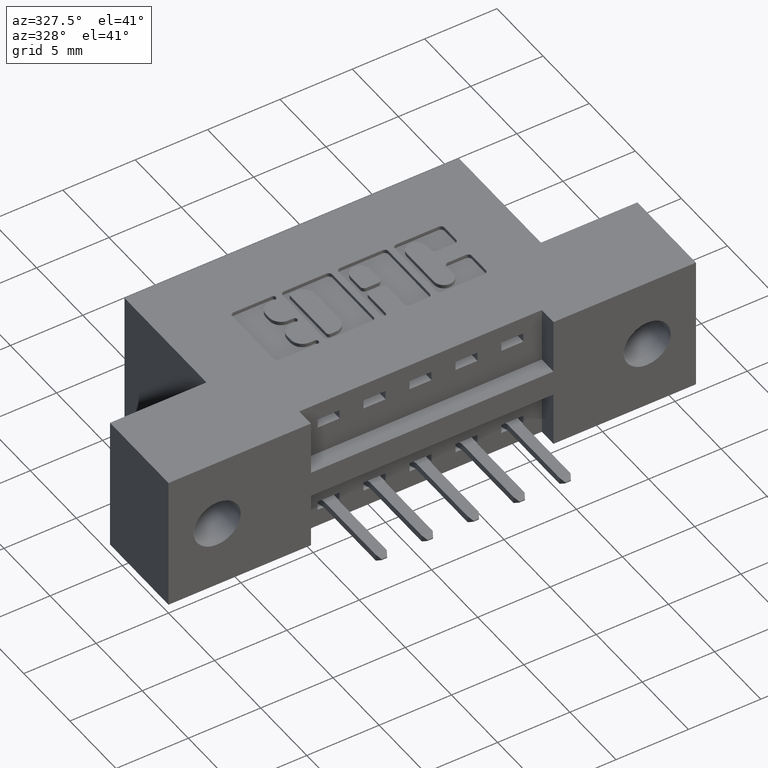
[diagram: clean part render]
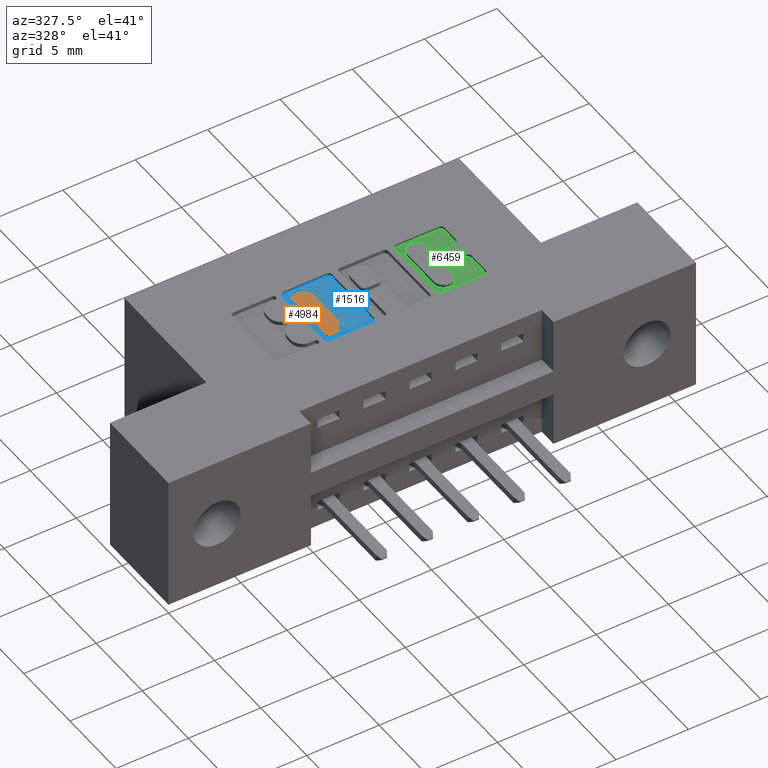
[diagram: same view with three faces highlighted in distinct colors, each labeled with its STEP entity id]
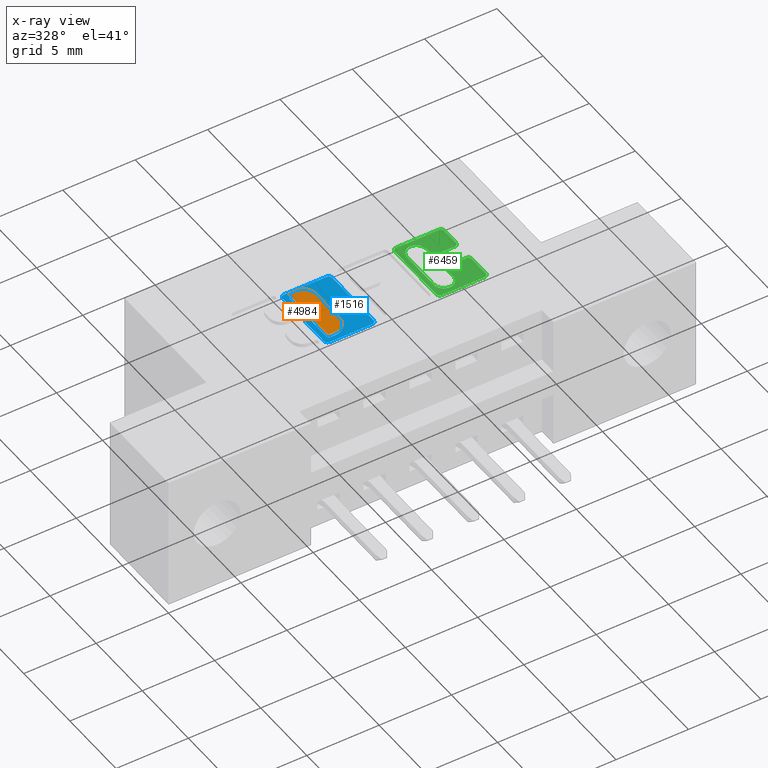
[diagram: x-ray of the same camera — body ghosted, the three highlighted faces saturated]
A machine part, auxiliary view with three faces highlighted in distinct colors.
The next image is the same camera in x-ray (body ghosted, the three faces saturated) — at least one of them is partly hidden behind the body in this view.
Their STEP definitions:

[orange] entity #4984 — the highlighted planar face has unit normal (0, 0, -1).
#148 = CARTESIAN_POINT ( 'NONE',  ( -0.0000000000000000000, 0.4094147637527238981, 0.0000000000000000000 ) ) ;
#159 = DIRECTION ( 'NONE',  ( -0.0000000000000000000, 0.0000000000000000000, 1.000000000000000000 ) ) ;
#198 = CARTESIAN_POINT ( 'NONE',  ( 0.5940679471871666006, 0.4094147637527238981, 0.0000000000000000000 ) ) ;
#213 = LINE ( 'NONE', #5865, #4966 ) ;
#244 = DIRECTION ( 'NONE',  ( 0.0000000000000000000, 0.0000000000000000000, -1.000000000000000000 ) ) ;
#364 = FACE_OUTER_BOUND ( 'NONE', #4982, .T. ) ;
#532 = VECTOR ( 'NONE', #5161, 39.37007874015748143 ) ;
#569 = CARTESIAN_POINT ( 'NONE',  ( 0.5940679471871666006, 0.4025437946100562381, 0.0000000000000000000 ) ) ;
#777 = DIRECTION ( 'NONE',  ( 0.0000000000000000000, 1.000000000000000000, -0.0000000000000000000 ) ) ;
#788 = CIRCLE ( 'NONE', #4519, 0.03141014465217187995 ) ;
#798 = DIRECTION ( 'NONE',  ( -1.000000000000000000, 0.0000000000000000000, 0.0000000000000000000 ) ) ;
#1354 = DIRECTION ( 'NONE',  ( 0.0000000000000000000, -1.000000000000000000, 0.0000000000000000000 ) ) ;
#1555 = ORIENTED_EDGE ( 'NONE', *, *, #6161, .T. ) ;
#1563 = VERTEX_POINT ( 'NONE', #8057 ) ;
#1577 = AXIS2_PLACEMENT_3D ( 'NONE', #569, #8029, #8096 ) ;
#1626 = ORIENTED_EDGE ( 'NONE', *, *, #6728, .F. ) ;
#1652 = DIRECTION ( 'NONE',  ( -0.0000000000000000000, 0.0000000000000000000, 1.000000000000000000 ) ) ;
#1787 = VERTEX_POINT ( 'NONE', #7262 ) ;
#1983 = CIRCLE ( 'NONE', #1577, 0.006870969142667761494 ) ;
#2033 = LINE ( 'NONE', #6505, #7414 ) ;
#2111 = DIRECTION ( 'NONE',  ( -0.0000000000000000000, 0.0000000000000000000, 1.000000000000000000 ) ) ;
#2135 = VECTOR ( 'NONE', #1354, 39.37007874015748143 ) ;
#2293 = DIRECTION ( 'NONE',  ( 1.000000000000000000, 0.0000000000000000000, 0.0000000000000000000 ) ) ;
#2348 = CARTESIAN_POINT ( 'NONE',  ( 0.5871969780444988851, 0.2474562053899769520, 0.0000000000000000000 ) ) ;
#2366 = CARTESIAN_POINT ( 'NONE',  ( 0.6397108136348437224, 0.3780046191005519973, 0.0000000000000000000 ) ) ;
#2372 = EDGE_CURVE ( 'NONE', #7899, #1563, #213, .T. ) ;
#2412 = CARTESIAN_POINT ( 'NONE',  ( 0.6083006689826718771, 0.3780046191005519973, 0.0000000000000000000 ) ) ;
#2942 = EDGE_CURVE ( 'NONE', #5444, #7232, #1983, .T. ) ;
#3691 = AXIS2_PLACEMENT_3D ( 'NONE', #7153, #159, #3885 ) ;
#3784 = ORIENTED_EDGE ( 'NONE', *, *, #2942, .T. ) ;
#3857 = ORIENTED_EDGE ( 'NONE', *, *, #6763, .F. ) ;
#3885 = DIRECTION ( 'NONE',  ( 1.000000000000000000, 0.0000000000000000000, 0.0000000000000000000 ) ) ;
#3957 = CARTESIAN_POINT ( 'NONE',  ( 0.6083006689826735425, 0.2405852362473137329, 0.0000000000000000000 ) ) ;
#4244 = CIRCLE ( 'NONE', #6515, 0.006870969142663253815 ) ;
#4343 = CARTESIAN_POINT ( 'NONE',  ( 0.6397108136348437224, 0.2719953808994839961, 0.0000000000000000000 ) ) ;
#4519 = AXIS2_PLACEMENT_3D ( 'NONE', #2412, #1652, #2293 ) ;
#4602 = ORIENTED_EDGE ( 'NONE', *, *, #5200, .T. ) ;
#4614 = CARTESIAN_POINT ( 'NONE',  ( 0.6397108136348437224, 0.0000000000000000000, 0.0000000000000000000 ) ) ;
#4677 = DIRECTION ( 'NONE',  ( -1.000000000000000000, 0.0000000000000000000, -0.0000000000000000000 ) ) ;
#4761 = CIRCLE ( 'NONE', #3691, 0.03141014465217017299 ) ;
#4966 = VECTOR ( 'NONE', #798, 39.37007874015748143 ) ;
#4982 = EDGE_LOOP ( 'NONE', ( #3784, #8163, #1555, #6654, #4602, #1626, #8194, #3857 ) ) ;
#4984 = ADVANCED_FACE ( 'NONE', ( #364 ), #7909, .F. ) ;
#5161 = DIRECTION ( 'NONE',  ( 1.000000000000000000, 0.0000000000000000000, 0.0000000000000000000 ) ) ;
#5200 = EDGE_CURVE ( 'NONE', #7899, #7379, #4761, .T. ) ;
#5273 = EDGE_CURVE ( 'NONE', #6844, #7232, #2033, .T. ) ;
#5441 = AXIS2_PLACEMENT_3D ( 'NONE', #7872, #244, #4677 ) ;
#5444 = VERTEX_POINT ( 'NONE', #198 ) ;
#5788 = VERTEX_POINT ( 'NONE', #2366 ) ;
#5865 = CARTESIAN_POINT ( 'NONE',  ( 0.0000000000000000000, 0.2405852362473137329, 0.0000000000000000000 ) ) ;
#5870 = EDGE_CURVE ( 'NONE', #5788, #1787, #788, .T. ) ;
#6161 = EDGE_CURVE ( 'NONE', #6844, #1563, #4244, .T. ) ;
#6505 = CARTESIAN_POINT ( 'NONE',  ( 0.5871969780444988851, 0.0000000000000000000, 0.0000000000000000000 ) ) ;
#6515 = AXIS2_PLACEMENT_3D ( 'NONE', #7860, #2111, #7901 ) ;
#6654 = ORIENTED_EDGE ( 'NONE', *, *, #2372, .F. ) ;
#6725 = CARTESIAN_POINT ( 'NONE',  ( 0.5871969780444988851, 0.4025437946100562381, 0.0000000000000000000 ) ) ;
#6728 = EDGE_CURVE ( 'NONE', #5788, #7379, #7845, .T. ) ;
#6763 = EDGE_CURVE ( 'NONE', #5444, #1787, #7178, .T. ) ;
#6844 = VERTEX_POINT ( 'NONE', #2348 ) ;
#7153 = CARTESIAN_POINT ( 'NONE',  ( 0.6083006689826735425, 0.2719953808994839961, 0.0000000000000000000 ) ) ;
#7178 = LINE ( 'NONE', #148, #532 ) ;
#7232 = VERTEX_POINT ( 'NONE', #6725 ) ;
#7262 = CARTESIAN_POINT ( 'NONE',  ( 0.6083006689826780944, 0.4094147637527238981, 0.0000000000000000000 ) ) ;
#7379 = VERTEX_POINT ( 'NONE', #4343 ) ;
#7414 = VECTOR ( 'NONE', #777, 39.37007874015748143 ) ;
#7845 = LINE ( 'NONE', #4614, #2135 ) ;
#7860 = CARTESIAN_POINT ( 'NONE',  ( 0.5940679471871621598, 0.2474562053899769520, 0.0000000000000000000 ) ) ;
#7872 = CARTESIAN_POINT ( 'NONE',  ( 0.0000000000000000000, 0.5999999999999999778, 0.0000000000000000000 ) ) ;
#7899 = VERTEX_POINT ( 'NONE', #3957 ) ;
#7901 = DIRECTION ( 'NONE',  ( 1.000000000000000000, 0.0000000000000000000, 0.0000000000000000000 ) ) ;
#7909 = PLANE ( 'NONE',  #5441 ) ;
#8029 = DIRECTION ( 'NONE',  ( -0.0000000000000000000, 0.0000000000000000000, 1.000000000000000000 ) ) ;
#8057 = CARTESIAN_POINT ( 'NONE',  ( 0.5940679471871621598, 0.2405852362473137329, 0.0000000000000000000 ) ) ;
#8096 = DIRECTION ( 'NONE',  ( 1.000000000000000000, 0.0000000000000000000, 0.0000000000000000000 ) ) ;
#8163 = ORIENTED_EDGE ( 'NONE', *, *, #5273, .F. ) ;
#8194 = ORIENTED_EDGE ( 'NONE', *, *, #5870, .T. ) ;

[blue] entity #1516 — the highlighted planar face has unit normal (0, 0, 1).
#18 = CARTESIAN_POINT ( 'NONE',  ( 0.5832707099630102254, 0.4133410318342096157, -0.01000000000000000021 ) ) ;
#100 = ORIENTED_EDGE ( 'NONE', *, *, #3352, .T. ) ;
#226 = CARTESIAN_POINT ( 'NONE',  ( 0.0000000000000000000, 0.0000000000000000000, -0.01000000000000000021 ) ) ;
#293 = EDGE_CURVE ( 'NONE', #3027, #2261, #7448, .T. ) ;
#367 = VERTEX_POINT ( 'NONE', #2102 ) ;
#445 = DIRECTION ( 'NONE',  ( 1.000000000000000000, 0.0000000000000000000, 0.0000000000000000000 ) ) ;
#482 = EDGE_CURVE ( 'NONE', #2793, #7440, #2279, .T. ) ;
#581 = CIRCLE ( 'NONE', #6056, 0.009815670203806754757 ) ;
#585 = CARTESIAN_POINT ( 'NONE',  ( 0.5734550397591693383, 0.4133410318342096157, -0.01000000000000000021 ) ) ;
#667 = CARTESIAN_POINT ( 'NONE',  ( 0.5832707099629761416, 0.2366589681657894073, -0.01000000000000000021 ) ) ;
#677 = EDGE_CURVE ( 'NONE', #861, #5348, #1604, .T. ) ;
#695 = VERTEX_POINT ( 'NONE', #2988 ) ;
#708 = VERTEX_POINT ( 'NONE', #6086 ) ;
#861 = VERTEX_POINT ( 'NONE', #7925 ) ;
#1029 = DIRECTION ( 'NONE',  ( 0.0000000000000000000, -1.000000000000000000, 0.0000000000000000000 ) ) ;
#1037 = DIRECTION ( 'NONE',  ( -1.000000000000000000, 0.0000000000000000000, 0.0000000000000000000 ) ) ;
#1072 = CARTESIAN_POINT ( 'NONE',  ( 0.6083006689826718771, 0.3780046191005519973, -0.01000000000000000021 ) ) ;
#1109 = ORIENTED_EDGE ( 'NONE', *, *, #7762, .F. ) ;
#1143 = EDGE_CURVE ( 'NONE', #367, #695, #5142, .T. ) ;
#1148 = ORIENTED_EDGE ( 'NONE', *, *, #1143, .T. ) ;
#1307 = DIRECTION ( 'NONE',  ( 0.0000000000000000000, -1.000000000000000000, 0.0000000000000000000 ) ) ;
#1357 = CARTESIAN_POINT ( 'NONE',  ( 0.6083006689826735425, 0.2719953808994839961, -0.01000000000000000021 ) ) ;
#1386 = CARTESIAN_POINT ( 'NONE',  ( 0.7089112885716690737, 0.0000000000000000000, -0.01000000000000000021 ) ) ;
#1506 = VERTEX_POINT ( 'NONE', #6374 ) ;
#1516 = ADVANCED_FACE ( 'NONE', ( #6044, #3411 ), #4118, .T. ) ;
#1570 = CARTESIAN_POINT ( 'NONE',  ( 0.5871969780444988851, 0.2474562053899769520, -0.01000000000000000021 ) ) ;
#1571 = VECTOR ( 'NONE', #1029, 39.37007874015748143 ) ;
#1604 = CIRCLE ( 'NONE', #4025, 0.009815670203806891800 ) ;
#1733 = ORIENTED_EDGE ( 'NONE', *, *, #4928, .T. ) ;
#2011 = AXIS2_PLACEMENT_3D ( 'NONE', #226, #5333, #5458 ) ;
#2036 = DIRECTION ( 'NONE',  ( 1.000000000000000000, 0.0000000000000000000, 0.0000000000000000000 ) ) ;
#2055 = LINE ( 'NONE', #1386, #6698 ) ;
#2077 = CARTESIAN_POINT ( 'NONE',  ( 0.6990956183678621594, 0.2366589681657894073, -0.01000000000000000021 ) ) ;
#2080 = CARTESIAN_POINT ( 'NONE',  ( 0.7089112885716690737, 0.4133410318342096157, -0.01000000000000000021 ) ) ;
#2093 = CARTESIAN_POINT ( 'NONE',  ( 0.5940679471871621598, 0.2474562053899769520, -0.01000000000000000021 ) ) ;
#2102 = CARTESIAN_POINT ( 'NONE',  ( 0.6083006689826735425, 0.2405852362473137329, -0.01000000000000000021 ) ) ;
#2146 = AXIS2_PLACEMENT_3D ( 'NONE', #1357, #7017, #5164 ) ;
#2261 = VERTEX_POINT ( 'NONE', #7966 ) ;
#2279 = CIRCLE ( 'NONE', #6921, 0.009815670203840902788 ) ;
#2401 = AXIS2_PLACEMENT_3D ( 'NONE', #7102, #5162, #4580 ) ;
#2597 = DIRECTION ( 'NONE',  ( 1.000000000000000000, 0.0000000000000000000, 0.0000000000000000000 ) ) ;
#2598 = ORIENTED_EDGE ( 'NONE', *, *, #3412, .F. ) ;
#2740 = CARTESIAN_POINT ( 'NONE',  ( 0.5940679471871666006, 0.4094147637527238981, -0.01000000000000000021 ) ) ;
#2793 = VERTEX_POINT ( 'NONE', #4661 ) ;
#2795 = VERTEX_POINT ( 'NONE', #6000 ) ;
#2843 = LINE ( 'NONE', #4801, #3569 ) ;
#2880 = DIRECTION ( 'NONE',  ( -0.0000000000000000000, 0.0000000000000000000, 1.000000000000000000 ) ) ;
#2965 = CIRCLE ( 'NONE', #4707, 0.006870969142663253815 ) ;
#2988 = CARTESIAN_POINT ( 'NONE',  ( 0.5940679471871621598, 0.2405852362473137329, -0.01000000000000000021 ) ) ;
#3027 = VERTEX_POINT ( 'NONE', #2080 ) ;
#3061 = CARTESIAN_POINT ( 'NONE',  ( 0.5871969780444988851, 0.0000000000000000000, -0.01000000000000000021 ) ) ;
#3071 = CIRCLE ( 'NONE', #5894, 0.006870969142667761494 ) ;
#3136 = VERTEX_POINT ( 'NONE', #3336 ) ;
#3146 = EDGE_LOOP ( 'NONE', ( #100, #3692, #7582, #6866, #7864, #7473, #6596, #5223 ) ) ;
#3158 = VERTEX_POINT ( 'NONE', #5936 ) ;
#3227 = DIRECTION ( 'NONE',  ( -0.0000000000000000000, 0.0000000000000000000, 1.000000000000000000 ) ) ;
#3336 = CARTESIAN_POINT ( 'NONE',  ( 0.5734550397591693383, 0.2366589681657894073, -0.01000000000000000021 ) ) ;
#3352 = EDGE_CURVE ( 'NONE', #5348, #3027, #2055, .T. ) ;
#3411 = FACE_OUTER_BOUND ( 'NONE', #3146, .T. ) ;
#3412 = EDGE_CURVE ( 'NONE', #7645, #695, #2965, .T. ) ;
#3515 = EDGE_CURVE ( 'NONE', #2261, #2793, #6101, .T. ) ;
#3569 = VECTOR ( 'NONE', #4184, 39.37007874015748143 ) ;
#3596 = DIRECTION ( 'NONE',  ( -0.0000000000000000000, 0.0000000000000000000, 1.000000000000000000 ) ) ;
#3692 = ORIENTED_EDGE ( 'NONE', *, *, #293, .T. ) ;
#3790 = CARTESIAN_POINT ( 'NONE',  ( 0.5832707099629761416, 0.2268432979619826595, -0.01000000000000000021 ) ) ;
#3815 = EDGE_CURVE ( 'NONE', #3136, #6488, #581, .T. ) ;
#3985 = DIRECTION ( 'NONE',  ( 0.0000000000000000000, 1.000000000000000000, -0.0000000000000000000 ) ) ;
#4025 = AXIS2_PLACEMENT_3D ( 'NONE', #2077, #5218, #2036 ) ;
#4118 = PLANE ( 'NONE',  #2011 ) ;
#4138 = EDGE_LOOP ( 'NONE', ( #6879, #1733, #4181, #7033, #1109, #1148, #2598, #7710 ) ) ;
#4181 = ORIENTED_EDGE ( 'NONE', *, *, #6015, .F. ) ;
#4184 = DIRECTION ( 'NONE',  ( 1.000000000000000000, 0.0000000000000000000, 0.0000000000000000000 ) ) ;
#4288 = EDGE_CURVE ( 'NONE', #7645, #3158, #6737, .T. ) ;
#4399 = DIRECTION ( 'NONE',  ( 1.000000000000000000, 0.0000000000000000000, 0.0000000000000000000 ) ) ;
#4415 = EDGE_CURVE ( 'NONE', #6488, #861, #6364, .T. ) ;
#4447 = CARTESIAN_POINT ( 'NONE',  ( 0.0000000000000000000, 0.2268432979619826595, -0.01000000000000000021 ) ) ;
#4522 = VECTOR ( 'NONE', #4399, 39.37007874015748143 ) ;
#4580 = DIRECTION ( 'NONE',  ( 1.000000000000000000, 0.0000000000000000000, 0.0000000000000000000 ) ) ;
#4604 = DIRECTION ( 'NONE',  ( 1.000000000000000000, 0.0000000000000000000, 0.0000000000000000000 ) ) ;
#4643 = CARTESIAN_POINT ( 'NONE',  ( 0.0000000000000000000, 0.2405852362473137329, -0.01000000000000000021 ) ) ;
#4648 = DIRECTION ( 'NONE',  ( 1.000000000000000000, 0.0000000000000000000, 0.0000000000000000000 ) ) ;
#4661 = CARTESIAN_POINT ( 'NONE',  ( 0.5832707099630102254, 0.4231567020380505029, -0.01000000000000000021 ) ) ;
#4707 = AXIS2_PLACEMENT_3D ( 'NONE', #2093, #7132, #4648 ) ;
#4801 = CARTESIAN_POINT ( 'NONE',  ( 0.0000000000000000000, 0.4094147637527238981, -0.01000000000000000021 ) ) ;
#4802 = CARTESIAN_POINT ( 'NONE',  ( 0.6397108136348437224, 0.0000000000000000000, -0.01000000000000000021 ) ) ;
#4828 = CARTESIAN_POINT ( 'NONE',  ( 0.7089112885716690737, 0.2366589681657894073, -0.01000000000000000021 ) ) ;
#4928 = EDGE_CURVE ( 'NONE', #6620, #708, #2843, .T. ) ;
#5142 = LINE ( 'NONE', #4643, #7061 ) ;
#5162 = DIRECTION ( 'NONE',  ( -0.0000000000000000000, 0.0000000000000000000, 1.000000000000000000 ) ) ;
#5164 = DIRECTION ( 'NONE',  ( 1.000000000000000000, 0.0000000000000000000, 0.0000000000000000000 ) ) ;
#5218 = DIRECTION ( 'NONE',  ( -0.0000000000000000000, 0.0000000000000000000, 1.000000000000000000 ) ) ;
#5223 = ORIENTED_EDGE ( 'NONE', *, *, #677, .T. ) ;
#5333 = DIRECTION ( 'NONE',  ( -0.0000000000000000000, 0.0000000000000000000, 1.000000000000000000 ) ) ;
#5348 = VERTEX_POINT ( 'NONE', #4828 ) ;
#5368 = DIRECTION ( 'NONE',  ( 1.000000000000000000, 0.0000000000000000000, 0.0000000000000000000 ) ) ;
#5458 = DIRECTION ( 'NONE',  ( 1.000000000000000000, 0.0000000000000000000, 0.0000000000000000000 ) ) ;
#5631 = DIRECTION ( 'NONE',  ( 0.0000000000000000000, 1.000000000000000000, -0.0000000000000000000 ) ) ;
#5666 = EDGE_CURVE ( 'NONE', #7440, #3136, #7720, .T. ) ;
#5763 = CIRCLE ( 'NONE', #2146, 0.03141014465217017299 ) ;
#5894 = AXIS2_PLACEMENT_3D ( 'NONE', #6100, #3596, #5368 ) ;
#5910 = VECTOR ( 'NONE', #1037, 39.37007874015748143 ) ;
#5911 = DIRECTION ( 'NONE',  ( -0.0000000000000000000, 0.0000000000000000000, 1.000000000000000000 ) ) ;
#5936 = CARTESIAN_POINT ( 'NONE',  ( 0.5871969780444988851, 0.4025437946100562381, -0.01000000000000000021 ) ) ;
#5974 = EDGE_CURVE ( 'NONE', #1506, #2795, #6868, .T. ) ;
#5997 = AXIS2_PLACEMENT_3D ( 'NONE', #1072, #2880, #445 ) ;
#6000 = CARTESIAN_POINT ( 'NONE',  ( 0.6397108136348437224, 0.2719953808994839961, -0.01000000000000000021 ) ) ;
#6015 = EDGE_CURVE ( 'NONE', #1506, #708, #6251, .T. ) ;
#6044 = FACE_BOUND ( 'NONE', #4138, .T. ) ;
#6056 = AXIS2_PLACEMENT_3D ( 'NONE', #667, #3227, #2597 ) ;
#6086 = CARTESIAN_POINT ( 'NONE',  ( 0.6083006689826780944, 0.4094147637527238981, -0.01000000000000000021 ) ) ;
#6100 = CARTESIAN_POINT ( 'NONE',  ( 0.5940679471871666006, 0.4025437946100562381, -0.01000000000000000021 ) ) ;
#6101 = LINE ( 'NONE', #8042, #5910 ) ;
#6251 = CIRCLE ( 'NONE', #5997, 0.03141014465217187995 ) ;
#6364 = LINE ( 'NONE', #4447, #4522 ) ;
#6374 = CARTESIAN_POINT ( 'NONE',  ( 0.6397108136348437224, 0.3780046191005519973, -0.01000000000000000021 ) ) ;
#6488 = VERTEX_POINT ( 'NONE', #3790 ) ;
#6596 = ORIENTED_EDGE ( 'NONE', *, *, #4415, .T. ) ;
#6620 = VERTEX_POINT ( 'NONE', #2740 ) ;
#6698 = VECTOR ( 'NONE', #3985, 39.37007874015748143 ) ;
#6737 = LINE ( 'NONE', #3061, #7594 ) ;
#6866 = ORIENTED_EDGE ( 'NONE', *, *, #482, .T. ) ;
#6868 = LINE ( 'NONE', #4802, #1571 ) ;
#6879 = ORIENTED_EDGE ( 'NONE', *, *, #7307, .F. ) ;
#6921 = AXIS2_PLACEMENT_3D ( 'NONE', #18, #5911, #4604 ) ;
#6975 = CARTESIAN_POINT ( 'NONE',  ( 0.5734550397591693383, 0.0000000000000000000, -0.01000000000000000021 ) ) ;
#7017 = DIRECTION ( 'NONE',  ( -0.0000000000000000000, 0.0000000000000000000, 1.000000000000000000 ) ) ;
#7033 = ORIENTED_EDGE ( 'NONE', *, *, #5974, .T. ) ;
#7061 = VECTOR ( 'NONE', #7169, 39.37007874015748143 ) ;
#7102 = CARTESIAN_POINT ( 'NONE',  ( 0.6990956183678280755, 0.4133410318342094492, -0.01000000000000000021 ) ) ;
#7132 = DIRECTION ( 'NONE',  ( -0.0000000000000000000, 0.0000000000000000000, 1.000000000000000000 ) ) ;
#7169 = DIRECTION ( 'NONE',  ( -1.000000000000000000, 0.0000000000000000000, 0.0000000000000000000 ) ) ;
#7307 = EDGE_CURVE ( 'NONE', #6620, #3158, #3071, .T. ) ;
#7440 = VERTEX_POINT ( 'NONE', #585 ) ;
#7448 = CIRCLE ( 'NONE', #2401, 0.009815670203841039831 ) ;
#7473 = ORIENTED_EDGE ( 'NONE', *, *, #3815, .T. ) ;
#7582 = ORIENTED_EDGE ( 'NONE', *, *, #3515, .T. ) ;
#7594 = VECTOR ( 'NONE', #5631, 39.37007874015748143 ) ;
#7645 = VERTEX_POINT ( 'NONE', #1570 ) ;
#7685 = VECTOR ( 'NONE', #1307, 39.37007874015748143 ) ;
#7710 = ORIENTED_EDGE ( 'NONE', *, *, #4288, .T. ) ;
#7720 = LINE ( 'NONE', #6975, #7685 ) ;
#7762 = EDGE_CURVE ( 'NONE', #367, #2795, #5763, .T. ) ;
#7864 = ORIENTED_EDGE ( 'NONE', *, *, #5666, .T. ) ;
#7925 = CARTESIAN_POINT ( 'NONE',  ( 0.6990956183678621594, 0.2268432979619826595, -0.01000000000000000021 ) ) ;
#7966 = CARTESIAN_POINT ( 'NONE',  ( 0.6990956183678962432, 0.4231567020380505029, -0.01000000000000000021 ) ) ;
#8042 = CARTESIAN_POINT ( 'NONE',  ( 0.0000000000000000000, 0.4231567020380505029, -0.01000000000000000021 ) ) ;

[green] entity #6459 — the highlighted planar face has unit normal (0, 0, 1).
#33 = DIRECTION ( 'NONE',  ( 1.000000000000000000, 0.0000000000000000000, 0.0000000000000000000 ) ) ;
#84 = CARTESIAN_POINT ( 'NONE',  ( 0.8924643213828185040, 0.2668421540424524840, -0.01000000000000000021 ) ) ;
#203 = EDGE_CURVE ( 'NONE', #1086, #3684, #4491, .T. ) ;
#279 = VERTEX_POINT ( 'NONE', #6857 ) ;
#289 = EDGE_CURVE ( 'NONE', #836, #1086, #4539, .T. ) ;
#373 = VECTOR ( 'NONE', #6506, 39.37007874015748143 ) ;
#375 = CARTESIAN_POINT ( 'NONE',  ( 1.004362961706134483, 0.2366589681657894073, -0.01000000000000000021 ) ) ;
#436 = EDGE_CURVE ( 'NONE', #6325, #4104, #3816, .T. ) ;
#471 = PLANE ( 'NONE',  #5052 ) ;
#561 = ORIENTED_EDGE ( 'NONE', *, *, #203, .T. ) ;
#752 = CARTESIAN_POINT ( 'NONE',  ( 0.9187212391779988607, 0.2668421540424524840, -0.01000000000000000021 ) ) ;
#835 = EDGE_LOOP ( 'NONE', ( #7952, #7323, #8132, #4872, #4901, #6619, #5752, #4508, #561, #5704, #8098, #6973, #2644, #3884, #1799, #3279, #5048, #1596, #1210, #7045 ) ) ;
#836 = VERTEX_POINT ( 'NONE', #6651 ) ;
#942 = DIRECTION ( 'NONE',  ( 1.000000000000000000, 0.0000000000000000000, 0.0000000000000000000 ) ) ;
#976 = CARTESIAN_POINT ( 'NONE',  ( 0.9449781569731660058, 0.3637718973050446669, -0.01000000000000000021 ) ) ;
#1004 = EDGE_CURVE ( 'NONE', #3684, #279, #1870, .T. ) ;
#1018 = CARTESIAN_POINT ( 'NONE',  ( 1.014178631909972150, 0.3637718973050381166, -0.01000000000000000021 ) ) ;
#1021 = CARTESIAN_POINT ( 'NONE',  ( 0.9547938271769671470, 0.3063502266127570151, -0.01000000000000000021 ) ) ;
#1024 = VERTEX_POINT ( 'NONE', #5489 ) ;
#1086 = VERTEX_POINT ( 'NONE', #6182 ) ;
#1091 = CARTESIAN_POINT ( 'NONE',  ( 0.9547938271769774721, 0.3637718973050446669, -0.01000000000000000021 ) ) ;
#1102 = DIRECTION ( 'NONE',  ( 0.0000000000000000000, 1.000000000000000000, -0.0000000000000000000 ) ) ;
#1123 = VERTEX_POINT ( 'NONE', #7794 ) ;
#1200 = EDGE_CURVE ( 'NONE', #1301, #4121, #2287, .T. ) ;
#1207 = CIRCLE ( 'NONE', #2814, 0.009815670203840083999 ) ;
#1210 = ORIENTED_EDGE ( 'NONE', *, *, #4732, .T. ) ;
#1223 = DIRECTION ( 'NONE',  ( 1.000000000000000000, 0.0000000000000000000, 0.0000000000000000000 ) ) ;
#1240 = AXIS2_PLACEMENT_3D ( 'NONE', #2493, #1944, #1273 ) ;
#1269 = CARTESIAN_POINT ( 'NONE',  ( 0.8787223830974586480, 0.0000000000000000000, -0.01000000000000000021 ) ) ;
#1273 = DIRECTION ( 'NONE',  ( 1.000000000000000000, 0.0000000000000000000, 0.0000000000000000000 ) ) ;
#1301 = VERTEX_POINT ( 'NONE', #84 ) ;
#1502 = EDGE_CURVE ( 'NONE', #5624, #836, #6979, .T. ) ;
#1507 = VECTOR ( 'NONE', #3290, 39.37007874015748143 ) ;
#1596 = ORIENTED_EDGE ( 'NONE', *, *, #3982, .F. ) ;
#1601 = CARTESIAN_POINT ( 'NONE',  ( 0.0000000000000000000, 0.0000000000000000000, -0.01000000000000000021 ) ) ;
#1651 = VERTEX_POINT ( 'NONE', #1021 ) ;
#1673 = CARTESIAN_POINT ( 'NONE',  ( 1.004362961706168456, 0.4231567020380505029, -0.01000000000000000021 ) ) ;
#1767 = EDGE_CURVE ( 'NONE', #1301, #6314, #5995, .T. ) ;
#1799 = ORIENTED_EDGE ( 'NONE', *, *, #7399, .T. ) ;
#1870 = CIRCLE ( 'NONE', #8117, 0.009815670203806345362 ) ;
#1873 = EDGE_CURVE ( 'NONE', #3077, #7894, #3505, .T. ) ;
#1944 = DIRECTION ( 'NONE',  ( -0.0000000000000000000, 0.0000000000000000000, 1.000000000000000000 ) ) ;
#2020 = CARTESIAN_POINT ( 'NONE',  ( 1.004362961706156687, 0.3063502266127570151, -0.01000000000000000021 ) ) ;
#2053 = DIRECTION ( 'NONE',  ( 0.0000000000000000000, 1.000000000000000000, -0.0000000000000000000 ) ) ;
#2054 = CARTESIAN_POINT ( 'NONE',  ( 1.004362961706132040, 0.4133410318342103928, -0.01000000000000000021 ) ) ;
#2107 = VERTEX_POINT ( 'NONE', #3551 ) ;
#2122 = EDGE_CURVE ( 'NONE', #1651, #1123, #4044, .T. ) ;
#2161 = LINE ( 'NONE', #5217, #373 ) ;
#2188 = EDGE_CURVE ( 'NONE', #7894, #1651, #5581, .T. ) ;
#2257 = DIRECTION ( 'NONE',  ( -0.0000000000000000000, 0.0000000000000000000, 1.000000000000000000 ) ) ;
#2284 = CARTESIAN_POINT ( 'NONE',  ( 1.014178631909940176, 0.0000000000000000000, -0.01000000000000000021 ) ) ;
#2287 = CIRCLE ( 'NONE', #4561, 0.02625691779518022489 ) ;
#2323 = LINE ( 'NONE', #2284, #5575 ) ;
#2326 = CARTESIAN_POINT ( 'NONE',  ( 0.9547938271769671470, 0.2965345564089690300, -0.01000000000000000021 ) ) ;
#2420 = VECTOR ( 'NONE', #3832, 39.37007874015748143 ) ;
#2493 = CARTESIAN_POINT ( 'NONE',  ( 0.8885380533012994242, 0.4133410318342096157, -0.01000000000000000021 ) ) ;
#2644 = ORIENTED_EDGE ( 'NONE', *, *, #2188, .T. ) ;
#2663 = VERTEX_POINT ( 'NONE', #3286 ) ;
#2685 = DIRECTION ( 'NONE',  ( -0.0000000000000000000, 0.0000000000000000000, 1.000000000000000000 ) ) ;
#2814 = AXIS2_PLACEMENT_3D ( 'NONE', #2054, #7707, #3354 ) ;
#2926 = AXIS2_PLACEMENT_3D ( 'NONE', #4615, #4041, #7846 ) ;
#2981 = DIRECTION ( 'NONE',  ( -0.0000000000000000000, 0.0000000000000000000, 1.000000000000000000 ) ) ;
#3008 = LINE ( 'NONE', #5577, #6219 ) ;
#3077 = VERTEX_POINT ( 'NONE', #7693 ) ;
#3130 = DIRECTION ( 'NONE',  ( 0.0000000000000000000, -1.000000000000000000, 0.0000000000000000000 ) ) ;
#3199 = DIRECTION ( 'NONE',  ( -0.0000000000000000000, 0.0000000000000000000, 1.000000000000000000 ) ) ;
#3279 = ORIENTED_EDGE ( 'NONE', *, *, #1200, .F. ) ;
#3286 = CARTESIAN_POINT ( 'NONE',  ( 0.8885380533012994242, 0.4231567020380505029, -0.01000000000000000021 ) ) ;
#3290 = DIRECTION ( 'NONE',  ( -1.000000000000000000, 0.0000000000000000000, 0.0000000000000000000 ) ) ;
#3348 = DIRECTION ( 'NONE',  ( 1.000000000000000000, 0.0000000000000000000, 0.0000000000000000000 ) ) ;
#3354 = DIRECTION ( 'NONE',  ( 1.000000000000000000, 0.0000000000000000000, 0.0000000000000000000 ) ) ;
#3446 = CARTESIAN_POINT ( 'NONE',  ( 0.8924643213828185040, 0.0000000000000000000, -0.01000000000000000021 ) ) ;
#3505 = CIRCLE ( 'NONE', #4175, 0.009815670203787086462 ) ;
#3551 = CARTESIAN_POINT ( 'NONE',  ( 0.9449781569731660058, 0.3831578454992594085, -0.01000000000000000021 ) ) ;
#3607 = VECTOR ( 'NONE', #2053, 39.37007874015748143 ) ;
#3684 = VERTEX_POINT ( 'NONE', #4126 ) ;
#3716 = LINE ( 'NONE', #5015, #5485 ) ;
#3816 = LINE ( 'NONE', #3858, #3607 ) ;
#3821 = CARTESIAN_POINT ( 'NONE',  ( 1.004362961706153135, 0.2965345564089699182, -0.01000000000000000021 ) ) ;
#3832 = DIRECTION ( 'NONE',  ( 0.0000000000000000000, -1.000000000000000000, 0.0000000000000000000 ) ) ;
#3858 = CARTESIAN_POINT ( 'NONE',  ( 1.014178631909972150, 0.0000000000000000000, -0.01000000000000000021 ) ) ;
#3883 = DIRECTION ( 'NONE',  ( -0.0000000000000000000, 0.0000000000000000000, 1.000000000000000000 ) ) ;
#3884 = ORIENTED_EDGE ( 'NONE', *, *, #2122, .T. ) ;
#3915 = CARTESIAN_POINT ( 'NONE',  ( 0.8787223830974586480, 0.4133410318342096157, -0.01000000000000000021 ) ) ;
#3973 = EDGE_CURVE ( 'NONE', #2663, #5624, #6712, .T. ) ;
#3982 = EDGE_CURVE ( 'NONE', #2107, #6314, #5397, .T. ) ;
#4035 = EDGE_CURVE ( 'NONE', #8030, #2663, #7688, .T. ) ;
#4041 = DIRECTION ( 'NONE',  ( -0.0000000000000000000, 0.0000000000000000000, 1.000000000000000000 ) ) ;
#4044 = CIRCLE ( 'NONE', #6569, 0.009815670203788042295 ) ;
#4093 = CARTESIAN_POINT ( 'NONE',  ( 0.8924643213828185040, 0.3831578459575290529, -0.01000000000000000021 ) ) ;
#4104 = VERTEX_POINT ( 'NONE', #6545 ) ;
#4110 = DIRECTION ( 'NONE',  ( -0.0000000000000000000, 0.0000000000000000000, 1.000000000000000000 ) ) ;
#4121 = VERTEX_POINT ( 'NONE', #7857 ) ;
#4126 = CARTESIAN_POINT ( 'NONE',  ( 1.004362961706134483, 0.2268432979619826595, -0.01000000000000000021 ) ) ;
#4175 = AXIS2_PLACEMENT_3D ( 'NONE', #3821, #6323, #1223 ) ;
#4194 = AXIS2_PLACEMENT_3D ( 'NONE', #7021, #3883, #6427 ) ;
#4236 = DIRECTION ( 'NONE',  ( -1.000000000000000000, 0.0000000000000000000, 0.0000000000000000000 ) ) ;
#4291 = CIRCLE ( 'NONE', #7712, 0.009815670203811535655 ) ;
#4491 = LINE ( 'NONE', #6287, #5747 ) ;
#4508 = ORIENTED_EDGE ( 'NONE', *, *, #289, .T. ) ;
#4536 = DIRECTION ( 'NONE',  ( 1.000000000000000000, 0.0000000000000000000, 0.0000000000000000000 ) ) ;
#4539 = CIRCLE ( 'NONE', #2926, 0.009815670203806754757 ) ;
#4541 = CARTESIAN_POINT ( 'NONE',  ( 0.0000000000000000000, 0.4231567020380505029, -0.01000000000000000021 ) ) ;
#4561 = AXIS2_PLACEMENT_3D ( 'NONE', #752, #2685, #3348 ) ;
#4615 = CARTESIAN_POINT ( 'NONE',  ( 0.8885380533012654514, 0.2366589681657894073, -0.01000000000000000021 ) ) ;
#4732 = EDGE_CURVE ( 'NONE', #2107, #8173, #3008, .T. ) ;
#4768 = DIRECTION ( 'NONE',  ( 1.000000000000000000, 0.0000000000000000000, 0.0000000000000000000 ) ) ;
#4872 = ORIENTED_EDGE ( 'NONE', *, *, #7151, .T. ) ;
#4901 = ORIENTED_EDGE ( 'NONE', *, *, #4035, .T. ) ;
#5015 = CARTESIAN_POINT ( 'NONE',  ( 0.9449781569731791064, 0.0000000000000000000, -0.01000000000000000021 ) ) ;
#5048 = ORIENTED_EDGE ( 'NONE', *, *, #1767, .T. ) ;
#5052 = AXIS2_PLACEMENT_3D ( 'NONE', #1601, #7274, #942 ) ;
#5217 = CARTESIAN_POINT ( 'NONE',  ( 0.0000000000000000000, 0.3539562271012330896, -0.01000000000000000021 ) ) ;
#5356 = CIRCLE ( 'NONE', #7452, 0.009815670203804980135 ) ;
#5374 = VECTOR ( 'NONE', #6497, 39.37007874015748143 ) ;
#5397 = CIRCLE ( 'NONE', #4194, 0.02625691779517367111 ) ;
#5411 = DIRECTION ( 'NONE',  ( 1.000000000000000000, 0.0000000000000000000, 0.0000000000000000000 ) ) ;
#5485 = VECTOR ( 'NONE', #3130, 39.37007874015748143 ) ;
#5486 = CARTESIAN_POINT ( 'NONE',  ( 1.004362961706167123, 0.3637718973050381166, -0.01000000000000000021 ) ) ;
#5489 = CARTESIAN_POINT ( 'NONE',  ( 0.9547938271769774721, 0.3539562271012330896, -0.01000000000000000021 ) ) ;
#5541 = CARTESIAN_POINT ( 'NONE',  ( 1.004362961706167123, 0.3539562271012330896, -0.01000000000000000021 ) ) ;
#5575 = VECTOR ( 'NONE', #1102, 39.37007874015748143 ) ;
#5577 = CARTESIAN_POINT ( 'NONE',  ( 0.9449781569731660058, 0.0000000000000000000, -0.01000000000000000021 ) ) ;
#5581 = LINE ( 'NONE', #6078, #7082 ) ;
#5624 = VERTEX_POINT ( 'NONE', #3915 ) ;
#5704 = ORIENTED_EDGE ( 'NONE', *, *, #1004, .T. ) ;
#5747 = VECTOR ( 'NONE', #33, 39.37007874015748143 ) ;
#5752 = ORIENTED_EDGE ( 'NONE', *, *, #1502, .T. ) ;
#5995 = LINE ( 'NONE', #3446, #5374 ) ;
#6078 = CARTESIAN_POINT ( 'NONE',  ( 0.0000000000000000000, 0.3063502266127570151, -0.01000000000000000021 ) ) ;
#6182 = CARTESIAN_POINT ( 'NONE',  ( 0.8885380533012654514, 0.2268432979619826595, -0.01000000000000000021 ) ) ;
#6219 = VECTOR ( 'NONE', #6227, 39.37007874015748143 ) ;
#6227 = DIRECTION ( 'NONE',  ( 0.0000000000000000000, -1.000000000000000000, 0.0000000000000000000 ) ) ;
#6237 = EDGE_CURVE ( 'NONE', #1024, #6952, #2161, .T. ) ;
#6287 = CARTESIAN_POINT ( 'NONE',  ( 0.0000000000000000000, 0.2268432979619826595, -0.01000000000000000021 ) ) ;
#6314 = VERTEX_POINT ( 'NONE', #4093 ) ;
#6323 = DIRECTION ( 'NONE',  ( -0.0000000000000000000, 0.0000000000000000000, 1.000000000000000000 ) ) ;
#6325 = VERTEX_POINT ( 'NONE', #1018 ) ;
#6407 = EDGE_CURVE ( 'NONE', #279, #3077, #2323, .T. ) ;
#6427 = DIRECTION ( 'NONE',  ( 1.000000000000000000, 0.0000000000000000000, 0.0000000000000000000 ) ) ;
#6459 = ADVANCED_FACE ( 'NONE', ( #7316 ), #471, .T. ) ;
#6497 = DIRECTION ( 'NONE',  ( 0.0000000000000000000, 1.000000000000000000, -0.0000000000000000000 ) ) ;
#6506 = DIRECTION ( 'NONE',  ( 1.000000000000000000, 0.0000000000000000000, 0.0000000000000000000 ) ) ;
#6545 = CARTESIAN_POINT ( 'NONE',  ( 1.014178631909972150, 0.4133410318341942946, -0.01000000000000000021 ) ) ;
#6569 = AXIS2_PLACEMENT_3D ( 'NONE', #2326, #3199, #4536 ) ;
#6619 = ORIENTED_EDGE ( 'NONE', *, *, #3973, .T. ) ;
#6651 = CARTESIAN_POINT ( 'NONE',  ( 0.8787223830974586480, 0.2366589681657894073, -0.01000000000000000021 ) ) ;
#6712 = CIRCLE ( 'NONE', #1240, 0.009815670203840767480 ) ;
#6857 = CARTESIAN_POINT ( 'NONE',  ( 1.014178631909940176, 0.2366589681657824407, -0.01000000000000000021 ) ) ;
#6952 = VERTEX_POINT ( 'NONE', #5541 ) ;
#6973 = ORIENTED_EDGE ( 'NONE', *, *, #1873, .T. ) ;
#6979 = LINE ( 'NONE', #1269, #2420 ) ;
#7021 = CARTESIAN_POINT ( 'NONE',  ( 0.9187212391779923104, 0.3831578459575290529, -0.01000000000000000021 ) ) ;
#7045 = ORIENTED_EDGE ( 'NONE', *, *, #8116, .T. ) ;
#7082 = VECTOR ( 'NONE', #4236, 39.37007874015748143 ) ;
#7151 = EDGE_CURVE ( 'NONE', #4104, #8030, #1207, .T. ) ;
#7231 = EDGE_CURVE ( 'NONE', #6952, #6325, #5356, .T. ) ;
#7274 = DIRECTION ( 'NONE',  ( -0.0000000000000000000, 0.0000000000000000000, 1.000000000000000000 ) ) ;
#7316 = FACE_OUTER_BOUND ( 'NONE', #835, .T. ) ;
#7323 = ORIENTED_EDGE ( 'NONE', *, *, #7231, .T. ) ;
#7399 = EDGE_CURVE ( 'NONE', #1123, #4121, #3716, .T. ) ;
#7452 = AXIS2_PLACEMENT_3D ( 'NONE', #5486, #2257, #4768 ) ;
#7688 = LINE ( 'NONE', #4541, #1507 ) ;
#7693 = CARTESIAN_POINT ( 'NONE',  ( 1.014178631909940176, 0.2965345564089699182, -0.01000000000000000021 ) ) ;
#7707 = DIRECTION ( 'NONE',  ( -0.0000000000000000000, 0.0000000000000000000, 1.000000000000000000 ) ) ;
#7712 = AXIS2_PLACEMENT_3D ( 'NONE', #1091, #2981, #7963 ) ;
#7794 = CARTESIAN_POINT ( 'NONE',  ( 0.9449781569731791064, 0.2965345564089681418, -0.01000000000000000021 ) ) ;
#7846 = DIRECTION ( 'NONE',  ( 1.000000000000000000, 0.0000000000000000000, 0.0000000000000000000 ) ) ;
#7857 = CARTESIAN_POINT ( 'NONE',  ( 0.9449781569731791064, 0.2668421540424524840, -0.01000000000000000021 ) ) ;
#7894 = VERTEX_POINT ( 'NONE', #2020 ) ;
#7952 = ORIENTED_EDGE ( 'NONE', *, *, #6237, .T. ) ;
#7963 = DIRECTION ( 'NONE',  ( 1.000000000000000000, 0.0000000000000000000, 0.0000000000000000000 ) ) ;
#8030 = VERTEX_POINT ( 'NONE', #1673 ) ;
#8098 = ORIENTED_EDGE ( 'NONE', *, *, #6407, .T. ) ;
#8116 = EDGE_CURVE ( 'NONE', #8173, #1024, #4291, .T. ) ;
#8117 = AXIS2_PLACEMENT_3D ( 'NONE', #375, #4110, #5411 ) ;
#8132 = ORIENTED_EDGE ( 'NONE', *, *, #436, .T. ) ;
#8173 = VERTEX_POINT ( 'NONE', #976 ) ;